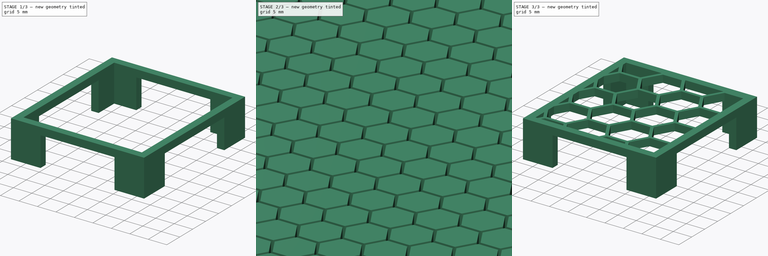
[diagram: build sequence overview — one tinted view per stage of 3, left to right]
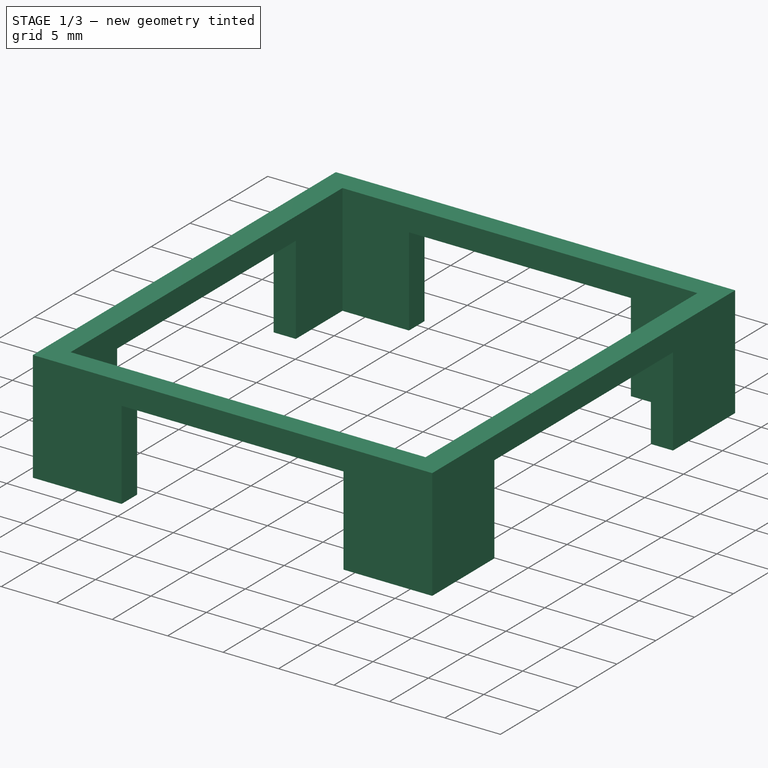
[diagram: stage 1 of 3 — iso view after this stage's code; geometry added in this stage tinted green]
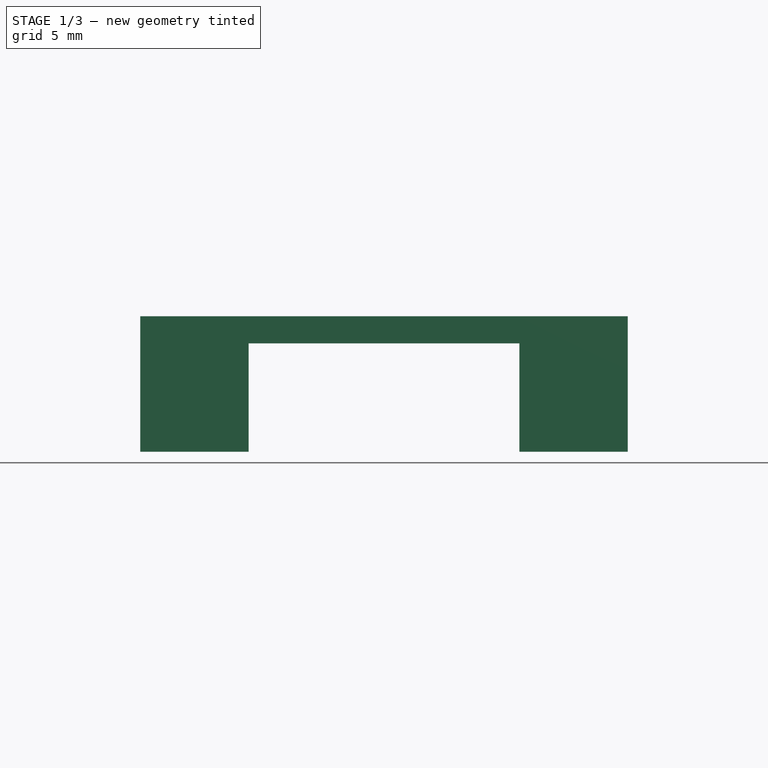
[diagram: stage 1 of 3 — front view after this stage's code; geometry added in this stage tinted green]
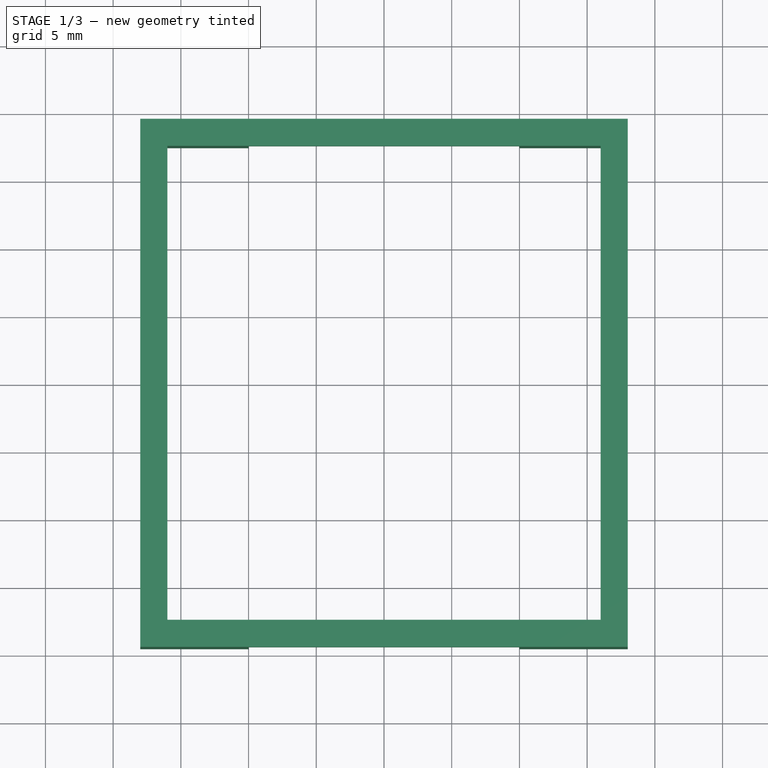
[diagram: stage 1 of 3 — top view after this stage's code; geometry added in this stage tinted green]
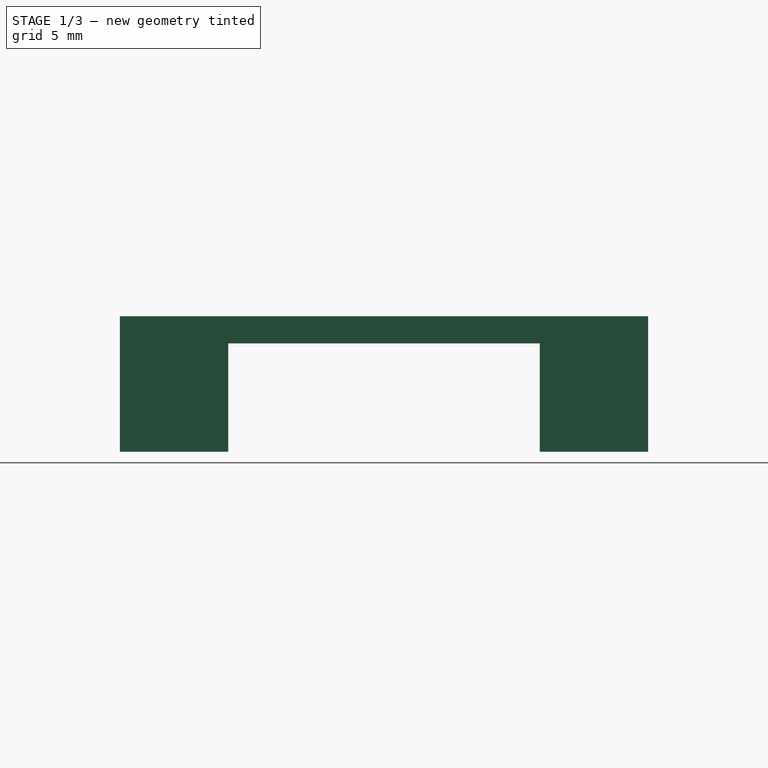
[diagram: stage 1 of 3 — right view after this stage's code; geometry added in this stage tinted green]
FCSTD DOCUMENT  (FreeCAD 0.18R16146 (Git))
Label: hexa
License: All rights reserved
LicenseURL: http://en.wikipedia.org/wiki/All_rights_reserved
objects: Sketcher::SketchObject×5, PartDesign::Pad×3, App::FeaturePython×2, PartDesign::Body×2, Spreadsheet::Sheet×1, Part::Extrusion×1, Part::FeaturePython×1, Part::Cut×1, Part::MultiFuse×1
note: 17 computed .brp shape members not serialized (recipe doc carries the construction recipe); baked Part::Feature solids carry a one-line shape summary decoded from their .brp

FEATURE [PartDesign::Pad] Pad001  label="bp-outline001"
  Length = 2
  Length2 = 100
  Profile = -> Sketch004
  Type = 0
  expr: Length = Spreadsheet.bpThickness
FEATURE [PartDesign::Pad] Pad002  label="corners"
  BaseFeature = -> Pad001
  Length = 8
  Length2 = 100
  Profile = -> Sketch005
  Type = 0
  expr: Length = Spreadsheet.wallHeight
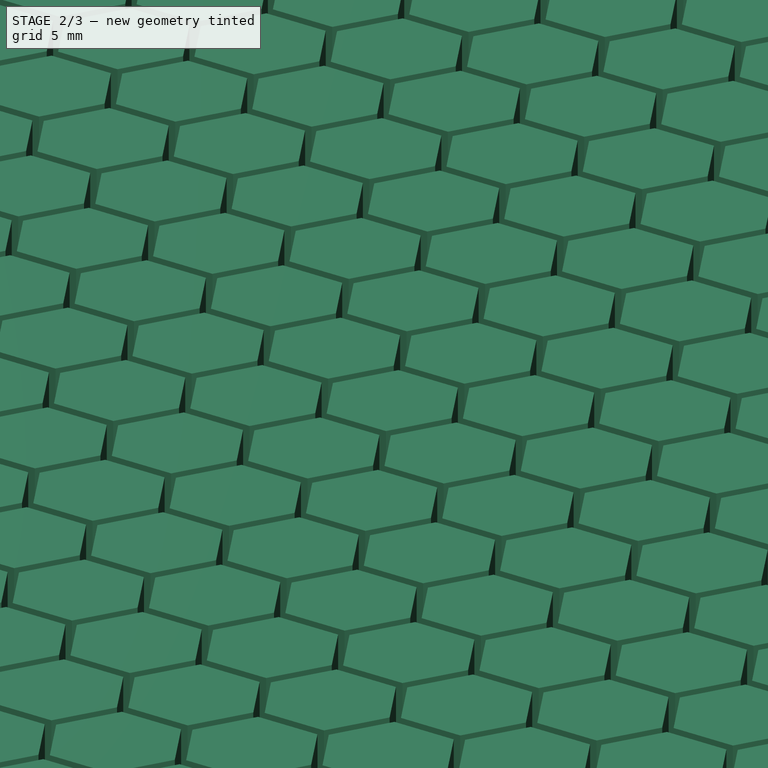
[diagram: stage 2 of 3 — iso view after this stage's code; geometry added in this stage tinted green]
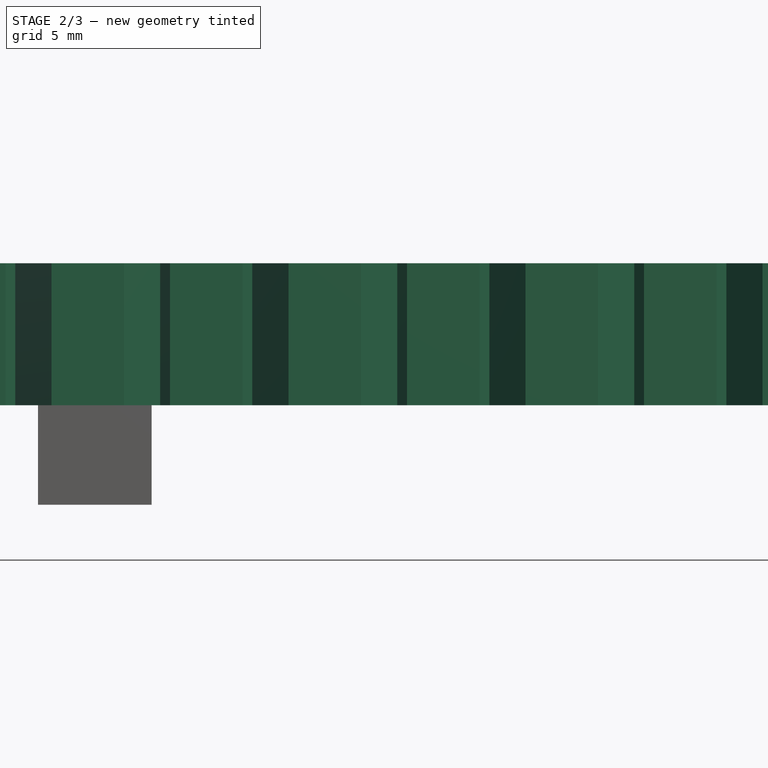
[diagram: stage 2 of 3 — front view after this stage's code; geometry added in this stage tinted green]
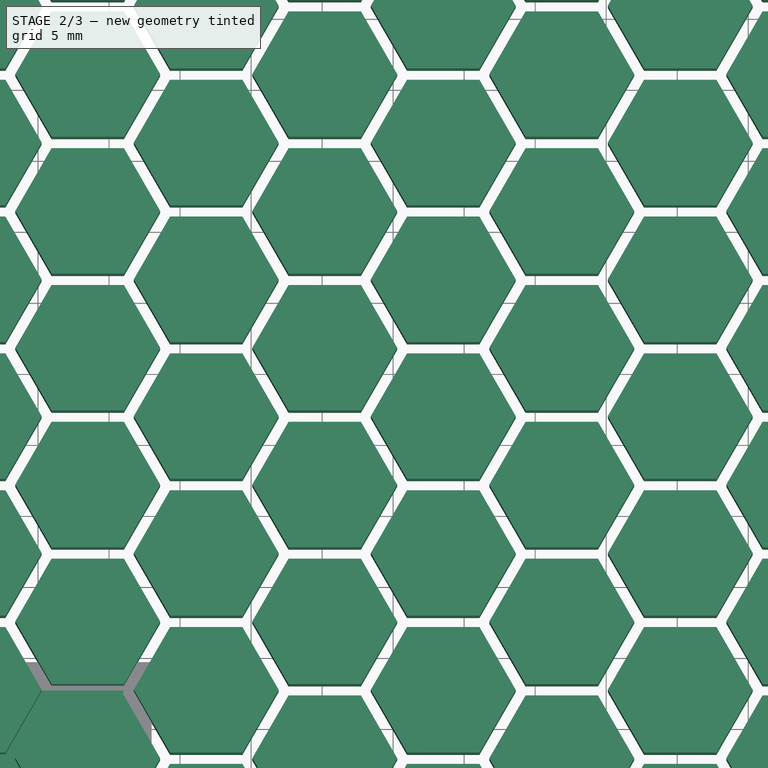
[diagram: stage 2 of 3 — top view after this stage's code; geometry added in this stage tinted green]
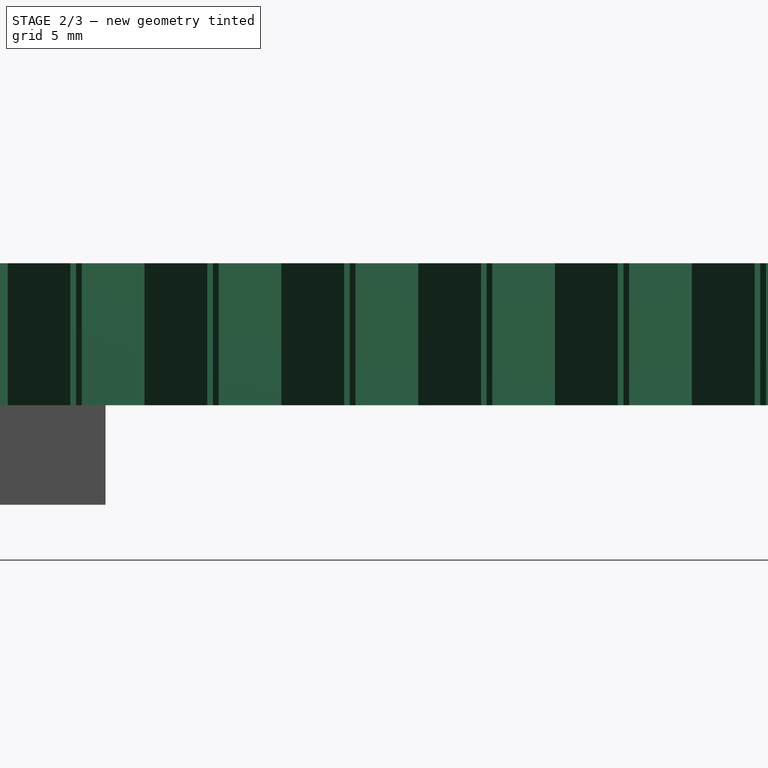
[diagram: stage 2 of 3 — right view after this stage's code; geometry added in this stage tinted green]
FEATURE [Spreadsheet::Sheet] Spreadsheet
  cells = A1=bpWidth; B1(bpWidth)=32; A2=bpLength; B2(bpLength)=35; A3=bpThickness; B3(bpThickness)=2; A4=wallLength; B4(wallLength)=8; A5=wallThickness; B5(wallThickness)=2; A6=wallHeight; B6(wallHeight)=8; A8=hex_diam; B8(hex_diam)=10.2; A9=hex_gap; B9(hex_gap)=0.8
FEATURE [Sketcher::SketchObject] Sketch002  label="hexagons001"
  MapMode = 5
  Support = -> [XY_Plane001]
  expr: Constraints[41] = Spreadsheet.hex_gap
  expr: Constraints[37] = Spreadsheet.hex_diam / 2
  sketch-geometry (15):
    g0: LineSegment StartX=10.2 StartY=1.2e-15 StartZ=0 EndX=7.65 EndY=4.41673 EndZ=0
    g1: LineSegment StartX=7.65 StartY=4.41673 StartZ=0 EndX=2.55 EndY=4.41673 EndZ=0
    g2: LineSegment StartX=2.55 StartY=4.41673 StartZ=0 EndX=0 EndY=0 EndZ=0
    g3: LineSegment StartX=0 StartY=0 StartZ=0 EndX=2.55 EndY=-4.41673 EndZ=0
    g4: LineSegment StartX=2.55 StartY=-4.41673 StartZ=0 EndX=7.65 EndY=-4.41673 EndZ=0
    g5: LineSegment StartX=7.65 StartY=-4.41673 StartZ=0 EndX=10.2 EndY=9e-16 EndZ=0
    g6: Circle [constr] CenterX=5.1 CenterY=1e-15 CenterZ=0 NormalX=0 NormalY=0 NormalZ=1 AngleXU=0 Radius=5.1
    g7: LineSegment StartX=18.5428 StartY=-4.81673 StartZ=0 EndX=15.9928 EndY=-0.4 EndZ=0
    g8: LineSegment StartX=15.9928 StartY=-0.4 StartZ=0 EndX=10.8928 EndY=-0.4 EndZ=0
    g9: LineSegment StartX=10.8928 StartY=-0.4 StartZ=0 EndX=8.34282 EndY=-4.81673 EndZ=0
    g10: LineSegment StartX=8.34282 StartY=-4.81673 StartZ=0 EndX=10.8928 EndY=-9.23346 EndZ=0
    g11: LineSegment StartX=10.8928 StartY=-9.23346 StartZ=0 EndX=15.9928 EndY=-9.23346 EndZ=0
    g12: LineSegment StartX=15.9928 StartY=-9.23346 StartZ=0 EndX=18.5428 EndY=-4.81673 EndZ=0
    g13: Circle [constr] CenterX=13.4428 CenterY=-4.81673 CenterZ=0 NormalX=0 NormalY=0 NormalZ=1 AngleXU=0 Radius=5.1
    g14: LineSegment [constr] StartX=7.65 StartY=-4.41673 StartZ=0 EndX=8.34282 EndY=-4.81673 EndZ=0
  constraints (35):
    c: Coincident(g0,g1)
    c: Coincident(g1,g2)
    c: Coincident(g2,g3)
    c: Coincident(g3,g4)
    c: Coincident(g4,g5)
    c: Coincident(g5,g0)
    c: Equal(g0, g1-g5) x5
    c: PointOnObject(g0,g6)
    c: PointOnObject(g1,g6)
    c: PointOnObject(g2,g6)
    c: PointOnObject(g3,g6)
    c: PointOnObject(g4,g6)
    c: PointOnObject(g5,g6)
    c: Coincident(g7,g8)
    c: Coincident(g8,g9)
    c: Coincident(g9,g10)
    c: Coincident(g10,g11)
    c: Coincident(g11,g12)
    c: Coincident(g12,g7)
    c: Equal(g7, g8-g12) x5
    c: PointOnObject(g7,g13)
    c: PointOnObject(g8,g13)
    c: PointOnObject(g9,g13)
    c: PointOnObject(g10,g13)
    c: PointOnObject(g11,g13)
    c: PointOnObject(g12,g13)
    c: Horizontal(g4)
    c: Horizontal(g11)
    c: Equal(g4,g11)
    c: Radius(g6) = 5.1
    c: Coincident(g14,g4)
    c: Coincident(g14,g9)
    c: Perpendicular(g5,g14)
    c: Distance(g14) = 0.8
    c: Coincident(g2,g-1)
FEATURE [Sketcher::SketchObject] Sketch003  label="measurements"
  ExternalGeometry = -> [Sketch002]
  MapMode = 5
  Support = -> [XY_Plane001]
  sketch-geometry (2):
    g0: LineSegment StartX=7.65 StartY=4.41673 StartZ=0 EndX=15.9928 EndY=4.41673 EndZ=0
    g1: LineSegment StartX=15.9928 StartY=-0.4 StartZ=0 EndX=15.9928 EndY=4.41673 EndZ=0
  constraints (5):
    c: Coincident(g0,g-3)
    c: Coincident(g1,g-4)
    c: Coincident(g1,g0)
    c: Horizontal(g0)
    c: Vertical(g1)
FEATURE [App::FeaturePython] Dimension  label="width"  # Draft dimension (typed FeaturePython)
  Diameter = false
  Dimline = (10.7904,6.27637,0)
  Direction = (0,0,0)
  Distance = 8.34282
  End = (15.9928,4.41673,0)
  LinkedGeometry = -> [Sketch003]
  Normal = (0,0,1)
  Start = (7.65,4.41673,0)
  Support = -> Sketch003
FEATURE [App::FeaturePython] Dimension001  label="height"  # Draft dimension (typed FeaturePython)
  Diameter = false
  Dimline = (16.0134,2.83449,0)
  Direction = (0,0,0)
  Distance = 4.81673
  End = (15.9928,4.41673,0)
  LinkedGeometry = -> [Sketch003]
  Normal = (0,0,1)
  Start = (15.9928,-0.4,0)
  Support = -> Sketch003
FEATURE [Part::Extrusion] Extrude  label="3d hexagons"
  Base = -> Sketch002
  Dir = (0,0,1)
  DirMode = 2
  FaceMakerClass = Part::FaceMakerBullseye
  LengthFwd = 10
  LengthRev = 0
  Solid = true
  Symmetric = false
FEATURE [Sketcher::SketchObject] Sketch004  label="bp-outline"
  MapMode = 2
  expr: Constraints[21] = Spreadsheet.bpLength
  expr: Constraints[20] = Spreadsheet.bpWidth
  expr: Constraints[10] = Spreadsheet.bpLength + 2 * Spreadsheet.wallThickness
  expr: Constraints[9] = Spreadsheet.bpWidth + 2 * Spreadsheet.wallThickness
  sketch-geometry (8):
    g0: LineSegment StartX=-18 StartY=19.5 StartZ=0 EndX=18 EndY=19.5 EndZ=0
    g1: LineSegment StartX=18 StartY=19.5 StartZ=0 EndX=18 EndY=-19.5 EndZ=0
    g2: LineSegment StartX=18 StartY=-19.5 StartZ=0 EndX=-18 EndY=-19.5 EndZ=0
    g3: LineSegment StartX=-18 StartY=-19.5 StartZ=0 EndX=-18 EndY=19.5 EndZ=0
    g4: LineSegment StartX=-16 StartY=17.5 StartZ=0 EndX=16 EndY=17.5 EndZ=0
    g5: LineSegment StartX=16 StartY=17.5 StartZ=0 EndX=16 EndY=-17.5 EndZ=0
    g6: LineSegment StartX=16 StartY=-17.5 StartZ=0 EndX=-16 EndY=-17.5 EndZ=0
    g7: LineSegment StartX=-16 StartY=-17.5 StartZ=0 EndX=-16 EndY=17.5 EndZ=0
  constraints (22):
    c: Coincident(g0,g1)
    c: Coincident(g1,g2)
    c: Coincident(g2,g3)
    c: Coincident(g3,g0)
    c: Horizontal(g0)
    c: Horizontal(g2)
    c: Vertical(g1)
    c: Vertical(g3)
    c: Symmetric(g0,g1,g-1)
    c: DistanceX(g0,g0) = 36
    c: DistanceY(g3,g3) = 39
    c: Coincident(g4,g5)
    c: Coincident(g5,g6)
    c: Coincident(g6,g7)
    c: Coincident(g7,g4)
    c: Horizontal(g4)
    c: Horizontal(g6)
    c: Vertical(g5)
    c: Vertical(g7)
    c: Symmetric(g4,g5,g-1)
    c: DistanceX(g4,g4) = 32
    c: DistanceY(g7,g7) = 35
FEATURE [Sketcher::SketchObject] Sketch005  label="corners001"
  MapMode = 5
  Placement = pos=(0,0,0) rot=(1,0,0;3.14159rad)
  expr: Constraints[16] = Spreadsheet.bpWidth / 2 + Spreadsheet.wallThickness
  expr: Constraints[17] = Spreadsheet.bpLength / 2 + Spreadsheet.wallThickness
  expr: Constraints[59] = Spreadsheet.wallThickness
  expr: Constraints[58] = Spreadsheet.wallThickness
  expr: Constraints[62] = Spreadsheet.wallLength
  expr: Constraints[57] = Spreadsheet.wallLength - Spreadsheet.wallThickness
  expr: Constraints[54] = Spreadsheet.wallLength
  expr: Constraints[60] = Spreadsheet.wallLength
  sketch-geometry (24):
    g0: LineSegment StartX=-18 StartY=11.5 StartZ=0 EndX=-18 EndY=19.5 EndZ=0
    g1: LineSegment StartX=-18 StartY=19.5 StartZ=0 EndX=-10 EndY=19.5 EndZ=0
    g2: LineSegment StartX=-10 StartY=19.5 StartZ=0 EndX=-10 EndY=17.5 EndZ=0
    g3: LineSegment StartX=-10 StartY=17.5 StartZ=0 EndX=-16 EndY=17.5 EndZ=0
    g4: LineSegment StartX=-16 StartY=17.5 StartZ=0 EndX=-16 EndY=11.5 EndZ=0
    g5: LineSegment StartX=-16 StartY=11.5 StartZ=0 EndX=-18 EndY=11.5 EndZ=0
    g6: LineSegment StartX=18 StartY=11.5 StartZ=0 EndX=18 EndY=19.5 EndZ=0
    g7: LineSegment StartX=18 StartY=19.5 StartZ=0 EndX=10 EndY=19.5 EndZ=0
    g8: LineSegment StartX=10 StartY=19.5 StartZ=0 EndX=10 EndY=17.5 EndZ=0
    g9: LineSegment StartX=10 StartY=17.5 StartZ=0 EndX=16 EndY=17.5 EndZ=0
    g10: LineSegment StartX=16 StartY=17.5 StartZ=0 EndX=16 EndY=11.5 EndZ=0
    g11: LineSegment StartX=16 StartY=11.5 StartZ=0 EndX=18 EndY=11.5 EndZ=0
    g12: LineSegment StartX=-18 StartY=-11.5 StartZ=0 EndX=-18 EndY=-19.5 EndZ=0
    g13: LineSegment StartX=-18 StartY=-19.5 StartZ=0 EndX=-10 EndY=-19.5 EndZ=0
    g14: LineSegment StartX=-10 StartY=-19.5 StartZ=0 EndX=-10 EndY=-17.5 EndZ=0
    g15: LineSegment StartX=-10 StartY=-17.5 StartZ=0 EndX=-16 EndY=-17.5 EndZ=0
    g16: LineSegment StartX=-16 StartY=-17.5 StartZ=0 EndX=-16 EndY=-11.5 EndZ=0
    g17: LineSegment StartX=-16 StartY=-11.5 StartZ=0 EndX=-18 EndY=-11.5 EndZ=0
    g18: LineSegment StartX=18 StartY=-11.5 StartZ=0 EndX=18 EndY=-19.5 EndZ=0
    g19: LineSegment StartX=18 StartY=-19.5 StartZ=0 EndX=10 EndY=-19.5 EndZ=0
    g20: LineSegment StartX=10 StartY=-19.5 StartZ=0 EndX=10 EndY=-17.5 EndZ=0
    g21: LineSegment StartX=10 StartY=-17.5 StartZ=0 EndX=16 EndY=-17.5 EndZ=0
    g22: LineSegment StartX=16 StartY=-17.5 StartZ=0 EndX=16 EndY=-11.5 EndZ=0
    g23: LineSegment StartX=16 StartY=-11.5 StartZ=0 EndX=18 EndY=-11.5 EndZ=0
  constraints (68):
    c: Coincident(g0,g1)
    c: Coincident(g1,g2)
    c: Coincident(g2,g3)
    c: Coincident(g3,g4)
    c: Coincident(g4,g5)
    c: Coincident(g5,g0)
    c: Horizontal(g3)
    c: Horizontal(g5)
    c: Horizontal(g1)
    c: Vertical(g2)
    c: Vertical(g0)
    c: Vertical(g4)
    c: DistanceX(g1,g1) = 8
    c: DistanceX(g5,g5) = 2
    c: DistanceY(g2,g2) = 2
    c: DistanceY(g0,g0) = 8
    c: DistanceX(g0,g-1) = 18
    c: DistanceY(g-1,g0) = 19.5
    c: Coincident(g6,g7)
    c: Coincident(g7,g8)
    c: Coincident(g8,g9)
    c: Coincident(g9,g10)
    c: Coincident(g10,g11)
    c: Coincident(g11,g6)
    c: Horizontal(g9)
    c: Horizontal(g11)
    c: Horizontal(g7)
    c: Vertical(g8)
    c: Vertical(g6)
    c: Vertical(g10)
    c: Coincident(g12,g13)
    c: Coincident(g13,g14)
    c: Coincident(g14,g15)
    c: Coincident(g15,g16)
    c: Coincident(g16,g17)
    c: Coincident(g17,g12)
    c: Horizontal(g15)
    c: Horizontal(g17)
    c: Horizontal(g13)
    c: Vertical(g14)
    c: Vertical(g12)
    c: Vertical(g16)
    c: Coincident(g18,g19)
    c: Coincident(g19,g20)
    c: Coincident(g20,g21)
    c: Coincident(g21,g22)
    c: Coincident(g22,g23)
    c: Coincident(g23,g18)
    c: Horizontal(g21)
    c: Horizontal(g23)
    c: Horizontal(g19)
    c: Vertical(g20)
    c: Vertical(g18)
    c: Vertical(g22)
    c: DistanceX(g7,g7) = 8
    c: DistanceY(g6,g6) = 8
    c: DistanceX(g9,g9) = 6  'wall-short'
    c: DistanceY(g10,g10) = 6
    c: DistanceY(g14,g14) = 2
    c: DistanceX(g17,g17) = 2
    c: Distance(g12) = 8
    c: Distance(g13) = 8
    c: Distance(g19) = 8
    c: Distance(g18) = 8
    c: Symmetric(g0,g18,g-1)
    c: Symmetric(g12,g6,g-1)
    c: Symmetric(g3,g21,g-1)
    c: Symmetric(g0,g6,g-2)
FEATURE [Sketcher::SketchObject] Sketch  label="baseplate"
  expr: Constraints[9] = Spreadsheet.bpLength
  expr: Constraints[8] = Spreadsheet.bpWidth
  sketch-geometry (4):
    g0: LineSegment StartX=-16 StartY=17.5 StartZ=0 EndX=16 EndY=17.5 EndZ=0
    g1: LineSegment StartX=16 StartY=17.5 StartZ=0 EndX=16 EndY=-17.5 EndZ=0
    g2: LineSegment StartX=16 StartY=-17.5 StartZ=0 EndX=-16 EndY=-17.5 EndZ=0
    g3: LineSegment StartX=-16 StartY=-17.5 StartZ=0 EndX=-16 EndY=17.5 EndZ=0
  constraints (11):
    c: Coincident(g0,g1)
    c: Coincident(g1,g2)
    c: Coincident(g2,g3)
    c: Coincident(g3,g0)
    c: Horizontal(g0)
    c: Horizontal(g2)
    c: Vertical(g1)
    c: Vertical(g3)
    c: DistanceX(g0,g0) = 32
    c: DistanceY(g3,g3) = 35
    c: Symmetric(g0,g1,g-1)
FEATURE [PartDesign::Pad] Pad  label="solid-baseplate"
  Length = 2
  Length2 = 100
  Profile = -> Sketch
  Type = 0
  expr: Length = Spreadsheet.bpThickness
FEATURE [PartDesign::Body] Body001  label="hexagons"
  Group = -> [Sketch002,Sketch003,Sketch,Pad]
  Origin = -> Origin001
  Tip = -> Pad
FEATURE [Part::FeaturePython] Array  # Draft array (typed FeaturePython)
  Angle = 360
  ArrayType = 0
  Axis = (0,0,1)
  Base = -> Extrude
  Center = (0,0,0)
  Fuse = false
  IntervalAxis = (0,0,0)
  IntervalX = (16.6856,0,0)
  IntervalY = (0,9.63346,0)
  IntervalZ = (0,0,1)
  NumberPolar = 1
  NumberX = 10
  NumberY = 20
  NumberZ = 1
  Placement = pos=(-50,-50,-1) rot=(0,0,1;0rad)
  expr: IntervalY.y = height.Distance * 2
  expr: IntervalX.x = width.Distance * 2
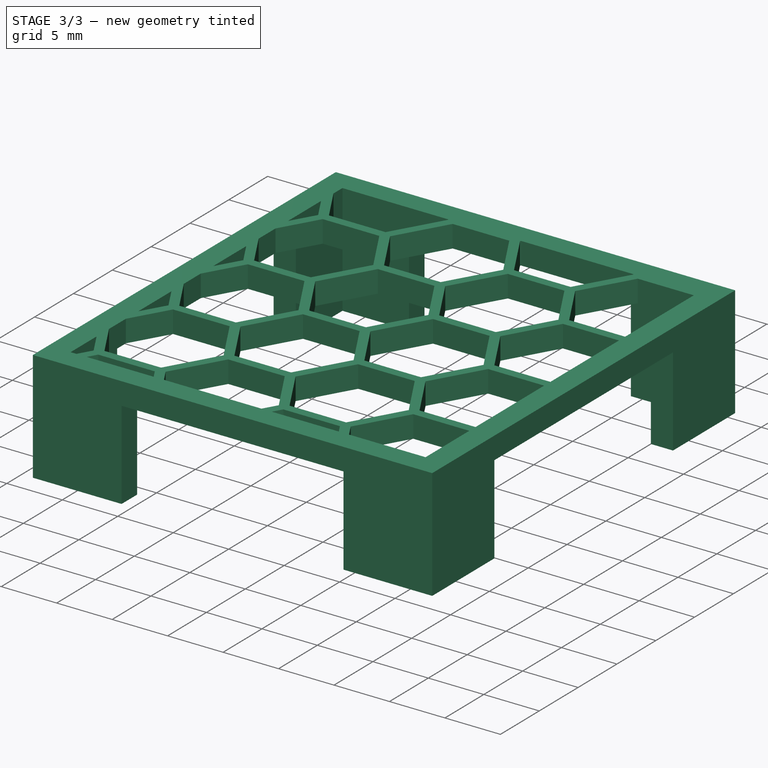
[diagram: stage 3 of 3 — iso view after this stage's code; geometry added in this stage tinted green]
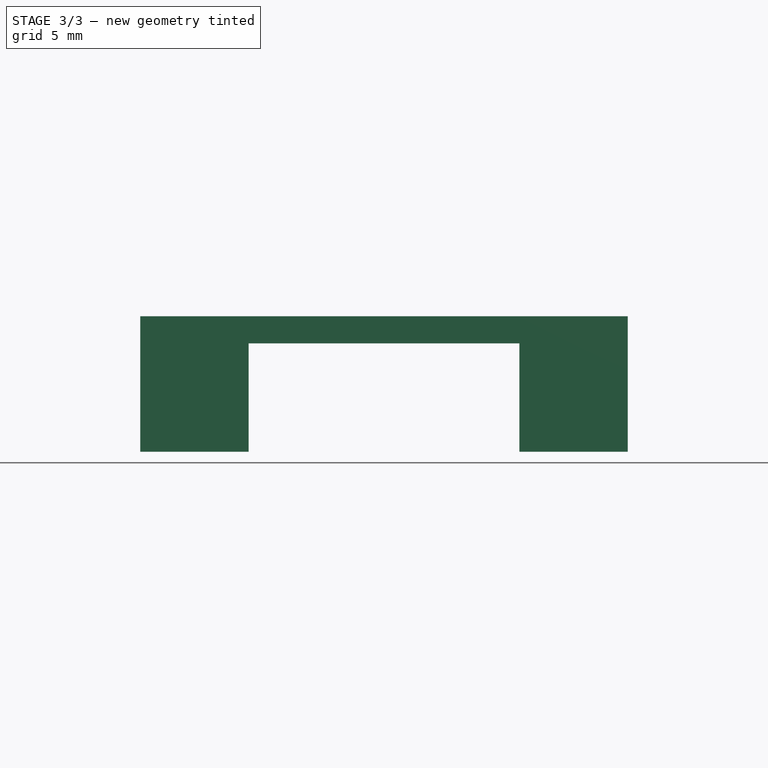
[diagram: stage 3 of 3 — front view after this stage's code; geometry added in this stage tinted green]
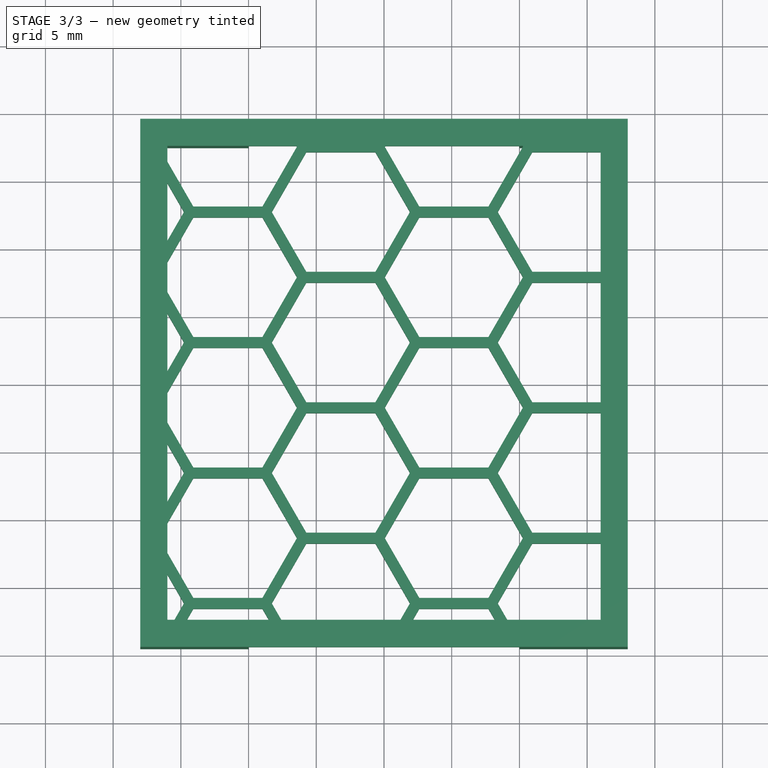
[diagram: stage 3 of 3 — top view after this stage's code; geometry added in this stage tinted green]
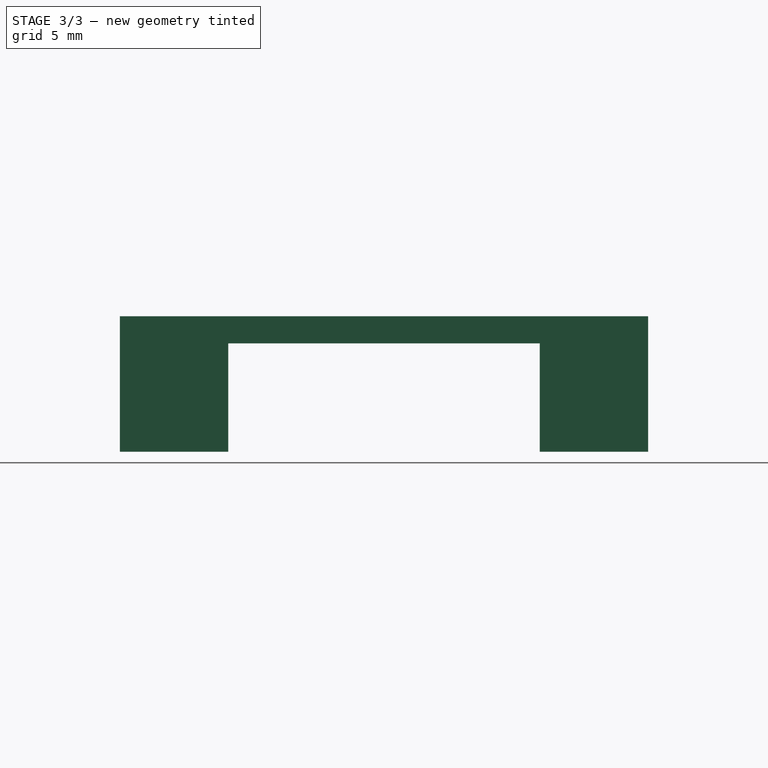
[diagram: stage 3 of 3 — right view after this stage's code; geometry added in this stage tinted green]
FEATURE [Part::Cut] Cut
  Base = -> Pad
  Tool = -> Array
FEATURE [PartDesign::Body] Body  label="total"
  Group = -> [Sketch004,Sketch005,Pad001,Pad002]
  Origin = -> Origin
  Tip = -> Pad002
FEATURE [Part::MultiFuse] Fusion
  Shapes = -> [Cut,Pad002]
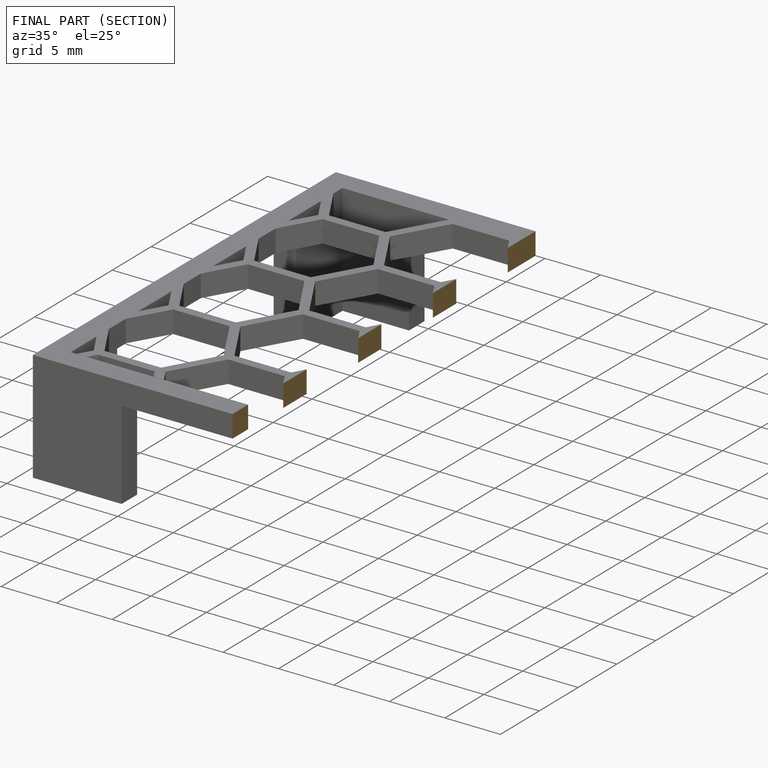
[diagram: finished part — half-section view (interior)]
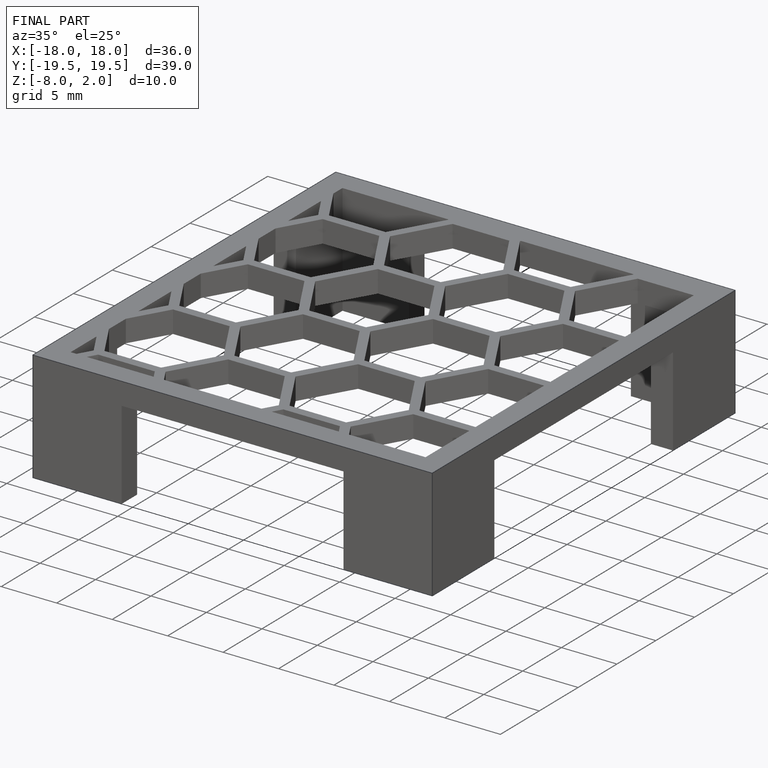
[diagram: finished part — iso view with bounding-box wireframe]
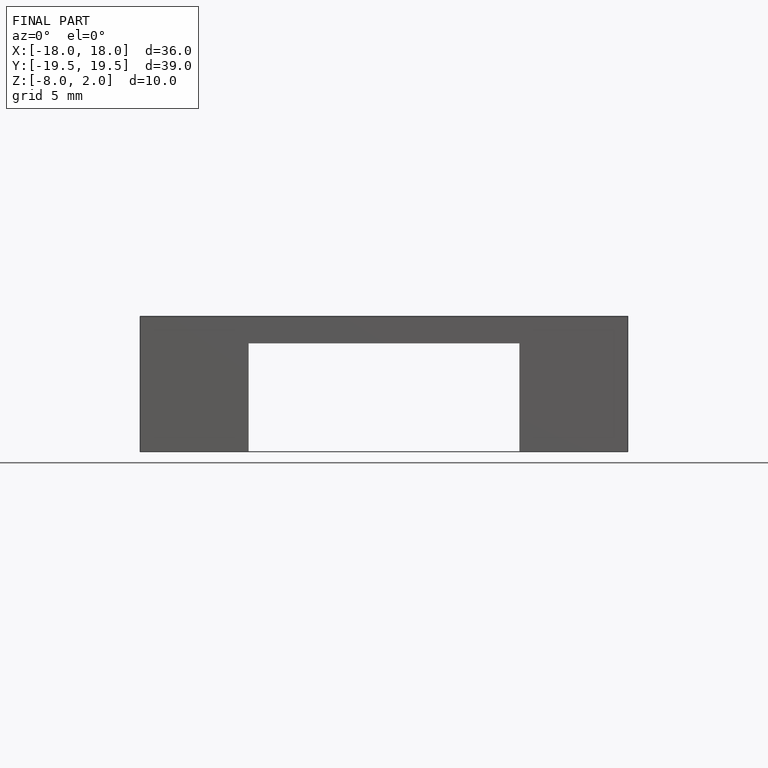
[diagram: finished part — front view with bounding-box wireframe]
